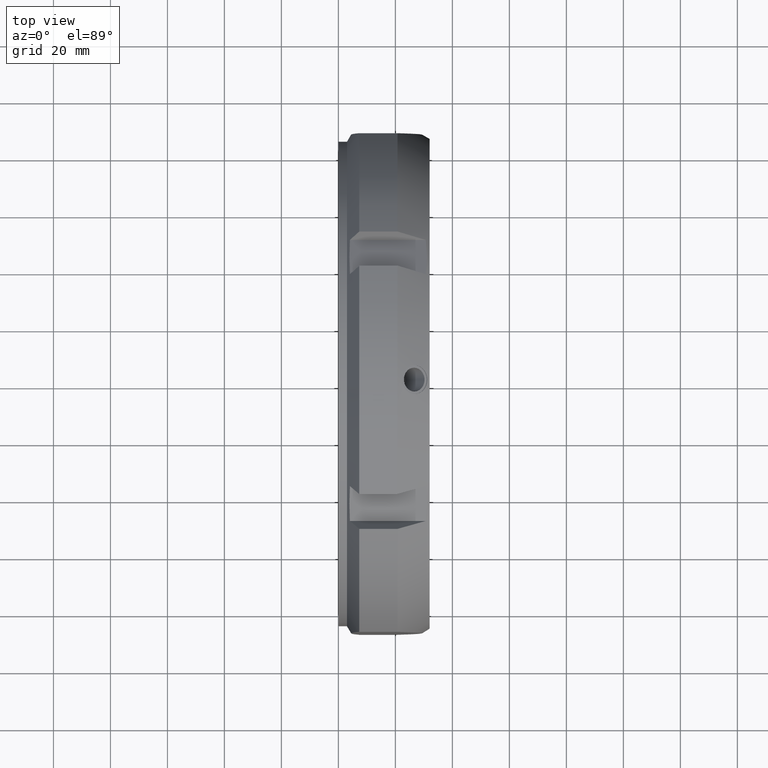
[diagram: clean part render]
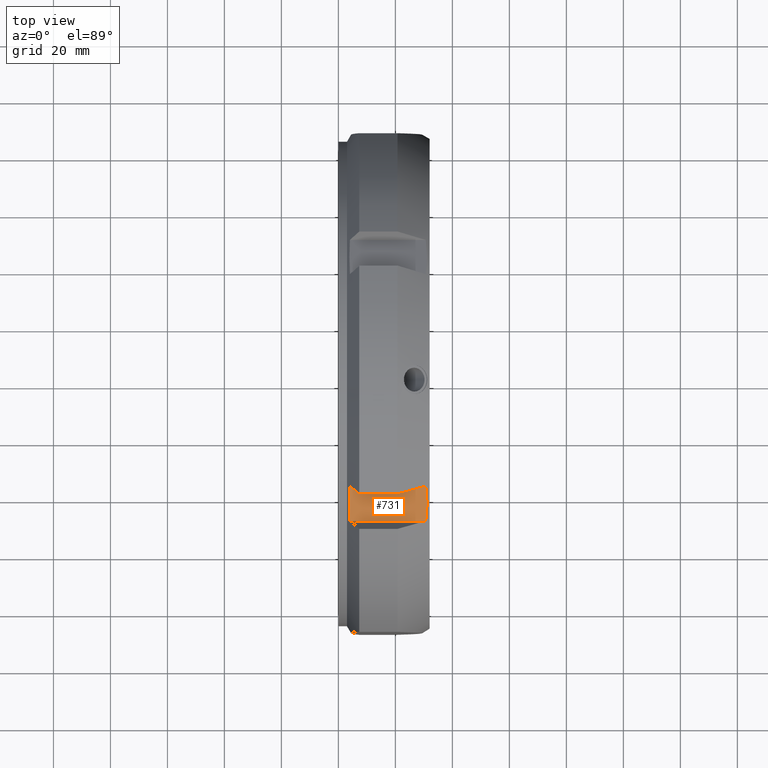
[diagram: same view with one face highlighted and labeled with its STEP entity id]
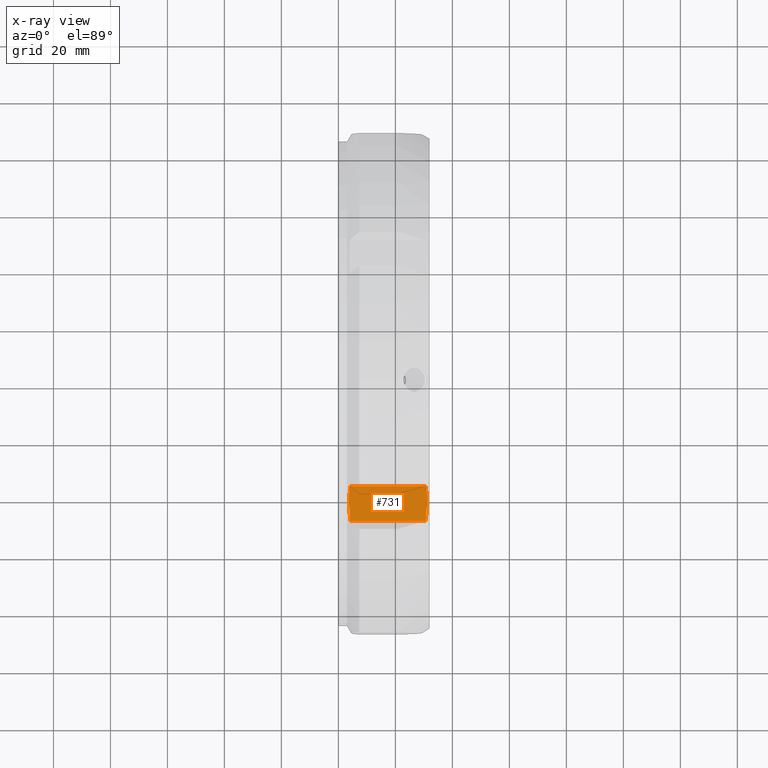
[diagram: x-ray of the same camera — body ghosted, the highlighted face saturated]
A machine part, top view. The second image highlights one B-rep face of the part: STEP entity #731.
The next image is the same camera in x-ray: the body ghosted, the highlighted face saturated — about 0% of this face is hidden behind the body in this view.
In plain terms, the highlighted planar face has unit normal (0, 0.5, -0.866).
Its self-contained STEP definition (entity closure, byte-faithful):
#418=CARTESIAN_POINT('',(4.02928550407317,-49.312177826491009,71.411197427353997));
#419=VERTEX_POINT('',#418);
#433=CARTESIAN_POINT('',(4.029285504073172,-37.187822173508863,78.411197427353983));
#434=VERTEX_POINT('',#433);
#435=CARTESIAN_POINT('',(4.02928550407317,-49.312177826491009,71.411197427353997));
#436=CARTESIAN_POINT('',(3.703297273602357,-43.249999999856428,74.911197427436832));
#437=CARTESIAN_POINT('',(4.029285504073172,-37.187822173508863,78.411197427353983));
#445=(BOUNDED_CURVE()B_SPLINE_CURVE(2,(#435,#436,#437),.UNSPECIFIED.,.F.,.U.)B_SPLINE_CURVE_WITH_KNOTS((3,3),(2.568327461430475,4.022575359883153),.UNSPECIFIED.)CURVE()GEOMETRIC_REPRESENTATION_ITEM()RATIONAL_B_SPLINE_CURVE((1.032993615311407,1.0363705465383,1.032993615311407))REPRESENTATION_ITEM(''));
#446=EDGE_CURVE('',#419,#434,#445,.T.);
#694=CARTESIAN_POINT('',(0.0,-49.312177826491009,71.411197427353997));
#695=DIRECTION('',(0.0,0.499999999999999,-0.866025403784439));
#696=DIRECTION('',(0.0,0.866025403784439,0.499999999999999));
#697=AXIS2_PLACEMENT_3D('',#694,#695,#696);
#698=PLANE('',#697);
#699=ORIENTED_EDGE('',*,*,#446,.F.);
#700=CARTESIAN_POINT('',(30.644194295349273,-49.312177826491009,71.411197427353997));
#701=VERTEX_POINT('',#700);
#702=CARTESIAN_POINT('',(4.02928550407317,-49.312177826491009,71.411197427353997));
#703=DIRECTION('',(1.0,0.0,0.0));
#704=VECTOR('',#703,26.614908791276104);
#705=LINE('',#702,#704);
#706=EDGE_CURVE('',#419,#701,#705,.T.);
#707=ORIENTED_EDGE('',*,*,#706,.T.);
#708=CARTESIAN_POINT('',(30.644194295349273,-37.187822173508863,78.411197427353983));
#709=VERTEX_POINT('',#708);
#710=CARTESIAN_POINT('',(30.644194295349273,-37.187822173508863,78.411197427353983));
#711=CARTESIAN_POINT('',(31.622158986817798,-43.250000000000206,74.911197427353827));
#712=CARTESIAN_POINT('',(30.644194295349273,-49.312177826491009,71.411197427353997));
#720=(BOUNDED_CURVE()B_SPLINE_CURVE(2,(#710,#711,#712),.UNSPECIFIED.,.F.,.U.)B_SPLINE_CURVE_WITH_KNOTS((3,3),(2.67944113901769,4.196604236050757),.UNSPECIFIED.)CURVE()GEOMETRIC_REPRESENTATION_ITEM()RATIONAL_B_SPLINE_CURVE((1.03299361531132,1.036370546538396,1.03299361531132))REPRESENTATION_ITEM(''));
#721=EDGE_CURVE('',#709,#701,#720,.T.);
#722=ORIENTED_EDGE('',*,*,#721,.F.);
#723=CARTESIAN_POINT('',(4.029285504073172,-37.187822173508863,78.411197427353983));
#724=DIRECTION('',(1.0,0.0,0.0));
#725=VECTOR('',#724,26.6149087912761);
#726=LINE('',#723,#725);
#727=EDGE_CURVE('',#434,#709,#726,.T.);
#728=ORIENTED_EDGE('',*,*,#727,.F.);
#729=EDGE_LOOP('',(#699,#707,#722,#728));
#730=FACE_OUTER_BOUND('',#729,.T.);
#731=ADVANCED_FACE('',(#730),#698,.F.);